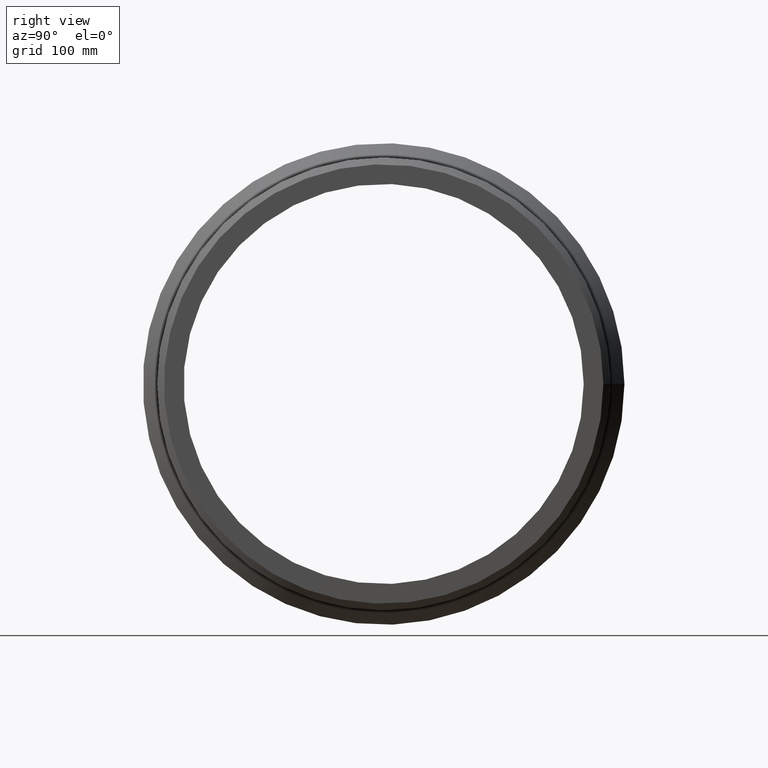
[diagram: clean part render]
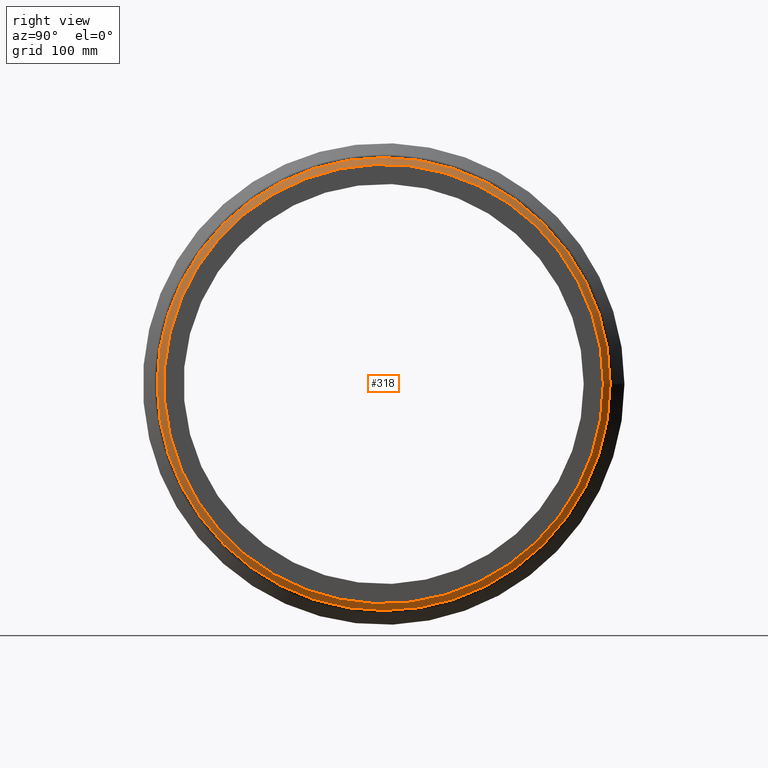
[diagram: same view with one face highlighted and labeled with its STEP entity id]
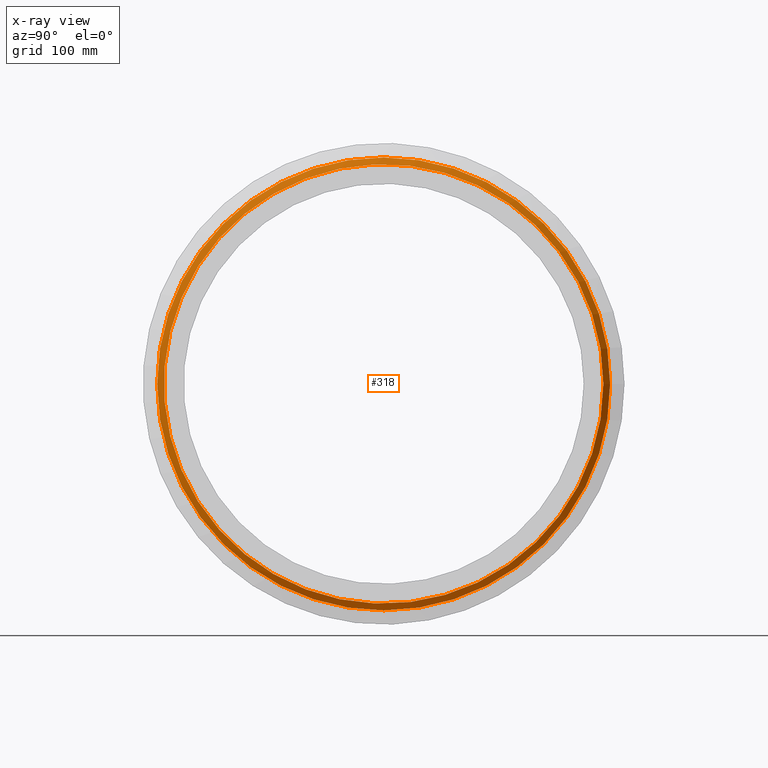
[diagram: x-ray of the same camera — body ghosted, the highlighted face saturated]
A machine part, right view. The second image highlights one B-rep face of the part: STEP entity #318.
The next image is the same camera in x-ray: the body ghosted, the highlighted face saturated — about 0% of this face is hidden behind the body in this view.
In plain terms, the highlighted conical surface has half-angle 45 deg.
Its self-contained STEP definition (entity closure, byte-faithful):
#20=CONICAL_SURFACE('',#372,312.245,45.0000000000001);
#46=FACE_BOUND('',#138,.T.);
#88=FACE_OUTER_BOUND('',#137,.T.);
#137=EDGE_LOOP('',(#279));
#138=EDGE_LOOP('',(#280));
#153=CIRCLE('',#344,317.);
#167=CIRCLE('',#373,307.49);
#179=VERTEX_POINT('',#556);
#193=VERTEX_POINT('',#636);
#207=EDGE_CURVE('',#179,#179,#153,.T.);
#223=EDGE_CURVE('',#193,#193,#167,.T.);
#279=ORIENTED_EDGE('',*,*,#207,.T.);
#280=ORIENTED_EDGE('',*,*,#223,.F.);
#318=ADVANCED_FACE('',(#88,#46),#20,.T.);
#344=AXIS2_PLACEMENT_3D('',#557,#421,#422);
#372=AXIS2_PLACEMENT_3D('',#635,#477,#478);
#373=AXIS2_PLACEMENT_3D('',#637,#479,#480);
#421=DIRECTION('center_axis',(1.,1.83697019872103E-16,0.));
#422=DIRECTION('ref_axis',(0.,0.,-1.));
#477=DIRECTION('center_axis',(-1.,-1.83697019872103E-16,0.));
#478=DIRECTION('ref_axis',(-1.90323947078598E-16,1.,0.));
#479=DIRECTION('center_axis',(1.,1.83697019872103E-16,0.));
#480=DIRECTION('ref_axis',(0.,0.,-1.));
#556=CARTESIAN_POINT('',(178.49,317.,0.));
#557=CARTESIAN_POINT('Origin',(178.49,6.7323120812927E-14,0.));
#635=CARTESIAN_POINT('Origin',(183.245,6.81966001424189E-14,0.));
#636=CARTESIAN_POINT('',(188.,307.49,0.));
#637=CARTESIAN_POINT('Origin',(188.,6.90700794719107E-14,0.));